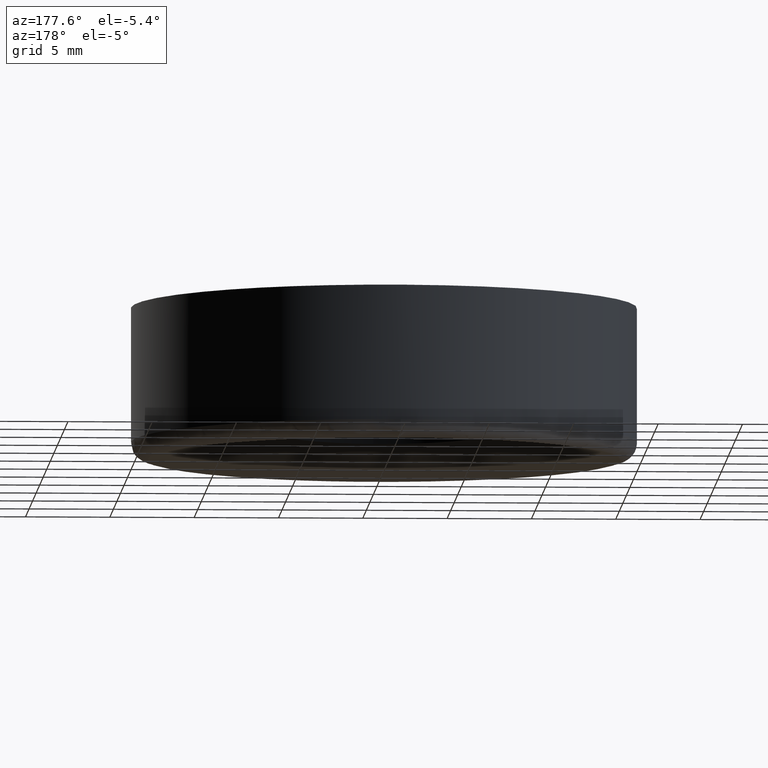
[diagram: clean part render]
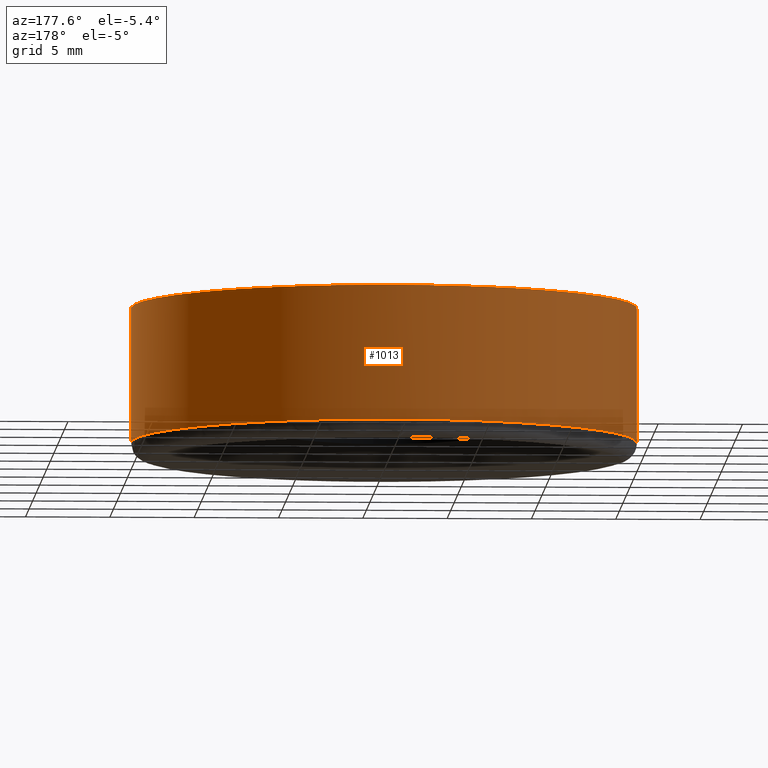
[diagram: same view with one face highlighted and labeled with its STEP entity id]
A machine part, auxiliary view. The second image highlights one B-rep face of the part: STEP entity #1013.
In plain terms, the highlighted face is a freeform B-spline surface patch.
Its self-contained STEP definition (entity closure, byte-faithful):
#812=CARTESIAN_POINT('',(14.639534999406409,-3.268641155137535,0.999999999999964));
#813=VERTEX_POINT('',#812);
#814=CARTESIAN_POINT('',(1.176877728282313,-14.953760691297580,1.000000000000031));
#815=VERTEX_POINT('',#814);
#829=CARTESIAN_POINT('',(14.639534973064221,-3.268641273118853,9.0));
#830=VERTEX_POINT('',#829);
#831=CARTESIAN_POINT('',(14.639534973064221,-3.268641273118853,9.0));
#832=CARTESIAN_POINT('',(14.639534999406409,-3.268641155137535,0.999999999999964));
#833=QUASI_UNIFORM_CURVE('',1,(#831,#832),.UNSPECIFIED.,.F.,.U.);
#834=EDGE_CURVE('',#830,#813,#833,.T.);
#836=CARTESIAN_POINT('',(1.176877835670445,-14.953760682846070,9.0));
#837=VERTEX_POINT('',#836);
#851=CARTESIAN_POINT('',(1.176877835670445,-14.953760682846070,9.0));
#852=CARTESIAN_POINT('',(1.176877728282313,-14.953760691297580,1.000000000000031));
#853=QUASI_UNIFORM_CURVE('',1,(#851,#852),.UNSPECIFIED.,.F.,.U.);
#854=EDGE_CURVE('',#837,#815,#853,.T.);
#859=CARTESIAN_POINT('',(1.176886435917673,-14.953760005996910,9.200000000003881));
#860=CARTESIAN_POINT('',(-13.776873570079243,-16.130646441914589,9.200000000003881));
#861=CARTESIAN_POINT('',(-14.953760005996910,-1.176886435917673,9.200000000003881));
#862=CARTESIAN_POINT('',(-16.130646441914589,13.776873570079243,9.200000000003881));
#863=CARTESIAN_POINT('',(-1.176886435917673,14.953760005996910,9.200000000003881));
#864=CARTESIAN_POINT('',(13.776873570079243,16.130646441914589,9.200000000003881));
#865=CARTESIAN_POINT('',(14.953760005996910,1.176886435917673,9.200000000003881));
#866=CARTESIAN_POINT('',(15.130553186650882,-1.069483913431229,9.200000000003881));
#867=CARTESIAN_POINT('',(14.639532865040310,-3.268650714500465,9.200000000003879));
#868=CARTESIAN_POINT('',(1.176886435917673,-14.953760005996910,0.794999999840890));
#869=CARTESIAN_POINT('',(-13.776873570079243,-16.130646441914589,0.794999999840890));
#870=CARTESIAN_POINT('',(-14.953760005996910,-1.176886435917673,0.794999999840890));
#871=CARTESIAN_POINT('',(-16.130646441914589,13.776873570079243,0.794999999840890));
#872=CARTESIAN_POINT('',(-1.176886435917673,14.953760005996910,0.794999999840890));
#873=CARTESIAN_POINT('',(13.776873570079243,16.130646441914589,0.794999999840890));
#874=CARTESIAN_POINT('',(14.953760005996910,1.176886435917673,0.794999999840890));
#875=CARTESIAN_POINT('',(15.130553186650882,-1.069483913431229,0.794999999840890));
#876=CARTESIAN_POINT('',(14.639532865040310,-3.268650714500465,0.794999999840890));
#884=(BOUNDED_SURFACE()B_SPLINE_SURFACE(2,1,((#859,#868),(#860,#869),(#861,#870),(#862,#871),(#863,#872),(#864,#873),(#865,#874),(#866,#875),(#867,#876)),.UNSPECIFIED.,.F.,.F.,.U.)B_SPLINE_SURFACE_WITH_KNOTS((3,2,2,2,3),(2,2),(0.0,24.852813742385699,49.705627484771391,74.558441227157090,79.529003975634225),(0.0,8.405000000162991),.UNSPECIFIED.)GEOMETRIC_REPRESENTATION_ITEM()RATIONAL_B_SPLINE_SURFACE(((1.0,1.0),(0.707106781186548,0.707106781186548),(1.0,1.0),(0.707106781186548,0.707106781186548),(1.0,1.0),(0.707106781186548,0.707106781186548),(1.0,1.0),(0.941421356237310,0.941421356237310),(0.906274169979695,0.906274169979695)))REPRESENTATION_ITEM('')SURFACE());
#885=CARTESIAN_POINT('',(15.0,0.0,1.0));
#886=VERTEX_POINT('',#885);
#887=CARTESIAN_POINT('',(15.0,0.0,1.0));
#888=CARTESIAN_POINT('',(14.999999999999996,-1.654196576567423,1.0));
#889=CARTESIAN_POINT('',(14.639534999406409,-3.268641155137535,0.999999999999964));
#897=(BOUNDED_CURVE()B_SPLINE_CURVE(2,(#887,#888,#889),.UNSPECIFIED.,.F.,.U.)B_SPLINE_CURVE_WITH_KNOTS((3,3),(0.500000000000000,0.537286560370751),.UNSPECIFIED.)CURVE()GEOMETRIC_REPRESENTATION_ITEM()RATIONAL_B_SPLINE_CURVE((1.0,0.956316077258115,0.925662740296602))REPRESENTATION_ITEM(''));
#898=EDGE_CURVE('',#886,#813,#897,.T.);
#899=ORIENTED_EDGE('',*,*,#898,.F.);
#900=CARTESIAN_POINT('',(-0.376951431650352,14.995262839249490,0.999999999845046));
#901=VERTEX_POINT('',#900);
#902=CARTESIAN_POINT('',(-0.376951431650352,14.995262839249484,0.999999999845046));
#903=CARTESIAN_POINT('',(-0.188505481850985,15.000000000000004,1.0));
#904=CARTESIAN_POINT('',(0.0,15.0,1.0));
#905=CARTESIAN_POINT('',(14.999999999999996,14.999999999999996,1.0));
#906=CARTESIAN_POINT('',(15.0,0.0,1.0));
#914=(BOUNDED_CURVE()B_SPLINE_CURVE(2,(#902,#903,#904,#905,#906),.UNSPECIFIED.,.F.,.U.)B_SPLINE_CURVE_WITH_KNOTS((3,2,3),(0.245579891769801,0.250000000000000,0.500000000000000),.UNSPECIFIED.)CURVE()GEOMETRIC_REPRESENTATION_ITEM()RATIONAL_B_SPLINE_CURVE((0.989826157681561,0.994821521091812,1.0,0.707106781186547,1.0))REPRESENTATION_ITEM(''));
#915=EDGE_CURVE('',#901,#886,#914,.T.);
#916=ORIENTED_EDGE('',*,*,#915,.F.);
#917=CARTESIAN_POINT('',(-15.0,0.0,1.0));
#918=VERTEX_POINT('',#917);
#919=CARTESIAN_POINT('',(-15.0,0.0,1.0));
#920=CARTESIAN_POINT('',(-14.999999999999995,14.627668142709187,1.0));
#921=CARTESIAN_POINT('',(-0.376951431650352,14.995262839249493,0.999999999845046));
#929=(BOUNDED_CURVE()B_SPLINE_CURVE(2,(#919,#920,#921),.UNSPECIFIED.,.F.,.U.)B_SPLINE_CURVE_WITH_KNOTS((3,3),(0.0,0.245579891769801),.UNSPECIFIED.)CURVE()GEOMETRIC_REPRESENTATION_ITEM()RATIONAL_B_SPLINE_CURVE((1.0,0.712285260094735,0.989826157681561))REPRESENTATION_ITEM(''));
#930=EDGE_CURVE('',#918,#901,#929,.T.);
#931=ORIENTED_EDGE('',*,*,#930,.F.);
#932=CARTESIAN_POINT('',(-14.995262839249479,-0.376951431650642,0.999999999844865));
#933=VERTEX_POINT('',#932);
#934=CARTESIAN_POINT('',(-14.995262839249484,-0.376951431650642,0.999999999844865));
#935=CARTESIAN_POINT('',(-15.000000000000002,-0.188505481851274,1.0));
#936=CARTESIAN_POINT('',(-15.0,0.0,1.0));
#944=(BOUNDED_CURVE()B_SPLINE_CURVE(2,(#934,#935,#936),.UNSPECIFIED.,.F.,.U.)B_SPLINE_CURVE_WITH_KNOTS((3,3),(0.995579891769794,1.0),.UNSPECIFIED.)CURVE()GEOMETRIC_REPRESENTATION_ITEM()RATIONAL_B_SPLINE_CURVE((0.989826157681546,0.994821521091805,1.0))REPRESENTATION_ITEM(''));
#945=EDGE_CURVE('',#933,#918,#944,.T.);
#946=ORIENTED_EDGE('',*,*,#945,.F.);
#947=CARTESIAN_POINT('',(1.176877728282313,-14.953760691297584,1.000000000000031));
#948=CARTESIAN_POINT('',(0.589347231092921,-14.999999999999996,1.0));
#949=CARTESIAN_POINT('',(0.0,-15.0,1.0));
#950=CARTESIAN_POINT('',(-14.627668142708698,-14.999999999999995,1.0));
#951=CARTESIAN_POINT('',(-14.995262839249484,-0.376951431650642,0.999999999844865));
#959=(BOUNDED_CURVE()B_SPLINE_CURVE(2,(#947,#948,#949,#950,#951),.UNSPECIFIED.,.F.,.U.)B_SPLINE_CURVE_WITH_KNOTS((3,2,3),(0.736331400453952,0.750000000000000,0.995579891769795),.UNSPECIFIED.)CURVE()GEOMETRIC_REPRESENTATION_ITEM()RATIONAL_B_SPLINE_CURVE((0.969723564491107,0.983986239529144,1.0,0.712285260094742,0.989826157681548))REPRESENTATION_ITEM(''));
#960=EDGE_CURVE('',#815,#933,#959,.T.);
#961=ORIENTED_EDGE('',*,*,#960,.F.);
#962=ORIENTED_EDGE('',*,*,#854,.F.);
#963=CARTESIAN_POINT('',(-15.0,0.0,9.0));
#964=VERTEX_POINT('',#963);
#965=CARTESIAN_POINT('',(1.176877835670445,-14.953760682846076,9.0));
#966=CARTESIAN_POINT('',(0.589347285036158,-15.000000000000004,9.0));
#967=CARTESIAN_POINT('',(0.0,-15.0,9.0));
#968=CARTESIAN_POINT('',(-14.999999999999996,-14.999999999999996,9.0));
#969=CARTESIAN_POINT('',(-15.0,0.0,9.0));
#977=(BOUNDED_CURVE()B_SPLINE_CURVE(2,(#965,#966,#967,#968,#969),.UNSPECIFIED.,.F.,.U.)B_SPLINE_CURVE_WITH_KNOTS((3,2,3),(0.736331399222893,0.750000000000000,1.0),.UNSPECIFIED.)CURVE()GEOMETRIC_REPRESENTATION_ITEM()RATIONAL_B_SPLINE_CURVE((0.969723561921979,0.983986238086868,1.0,0.707106781186547,1.0))REPRESENTATION_ITEM(''));
#978=EDGE_CURVE('',#837,#964,#977,.T.);
#979=ORIENTED_EDGE('',*,*,#978,.T.);
#980=CARTESIAN_POINT('',(15.0,0.0,9.0));
#981=VERTEX_POINT('',#980);
#982=CARTESIAN_POINT('',(-15.0,0.0,9.0));
#983=CARTESIAN_POINT('',(-14.999999999999996,14.999999999999996,9.0));
#984=CARTESIAN_POINT('',(0.0,15.0,9.0));
#985=CARTESIAN_POINT('',(14.999999999999996,14.999999999999996,9.0));
#986=CARTESIAN_POINT('',(15.0,0.0,9.0));
#994=(BOUNDED_CURVE()B_SPLINE_CURVE(2,(#982,#983,#984,#985,#986),.UNSPECIFIED.,.F.,.U.)B_SPLINE_CURVE_WITH_KNOTS((3,2,3),(0.0,0.250000000000000,0.500000000000000),.UNSPECIFIED.)CURVE()GEOMETRIC_REPRESENTATION_ITEM()RATIONAL_B_SPLINE_CURVE((1.0,0.707106781186547,1.0,0.707106781186547,1.0))REPRESENTATION_ITEM(''));
#995=EDGE_CURVE('',#964,#981,#994,.T.);
#996=ORIENTED_EDGE('',*,*,#995,.T.);
#997=CARTESIAN_POINT('',(15.0,0.0,9.0));
#998=CARTESIAN_POINT('',(14.999999999999998,-1.654196637745669,9.0));
#999=CARTESIAN_POINT('',(14.639534973064219,-3.268641273118853,9.0));
#1007=(BOUNDED_CURVE()B_SPLINE_CURVE(2,(#997,#998,#999),.UNSPECIFIED.,.F.,.U.)B_SPLINE_CURVE_WITH_KNOTS((3,3),(0.500000000000000,0.537286561689504),.UNSPECIFIED.)CURVE()GEOMETRIC_REPRESENTATION_ITEM()RATIONAL_B_SPLINE_CURVE((1.0,0.956316075713099,0.925662738128303))REPRESENTATION_ITEM(''));
#1008=EDGE_CURVE('',#981,#830,#1007,.T.);
#1009=ORIENTED_EDGE('',*,*,#1008,.T.);
#1010=ORIENTED_EDGE('',*,*,#834,.T.);
#1011=EDGE_LOOP('',(#899,#916,#931,#946,#961,#962,#979,#996,#1009,#1010));
#1012=FACE_OUTER_BOUND('',#1011,.T.);
#1013=ADVANCED_FACE('',(#1012),#884,.T.);